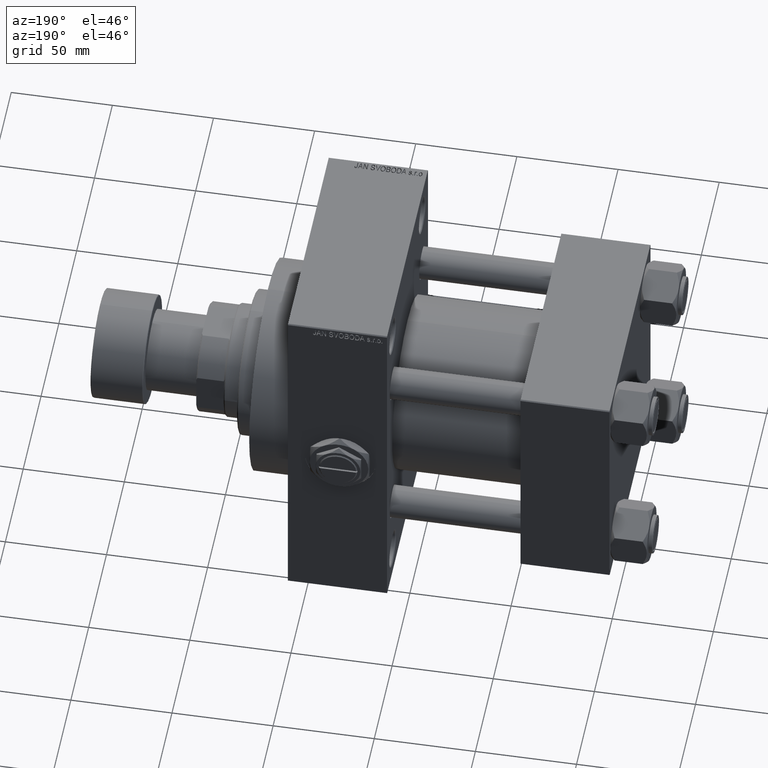
[diagram: clean part render]
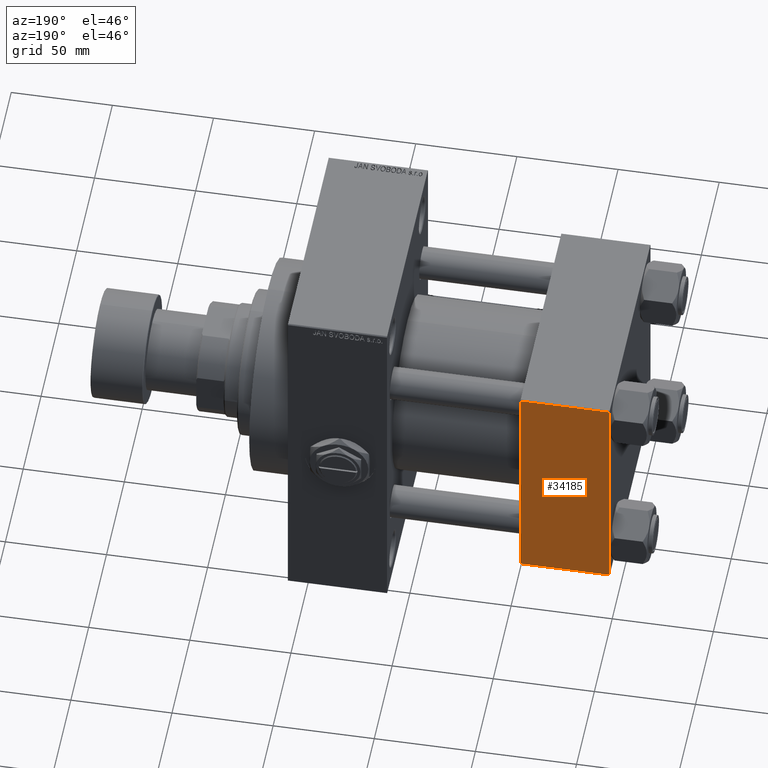
[diagram: same view with one face highlighted and labeled with its STEP entity id]
A machine part, auxiliary view. The second image highlights one B-rep face of the part: STEP entity #34185.
In plain terms, the highlighted planar face has unit normal (0, 1, 0).
Its self-contained STEP definition (entity closure, byte-faithful):
#530 = CARTESIAN_POINT ( 'NONE',  ( 0.000000000000000000, 57.50000000000000000, -56.99999999999997158 ) ) ;
#750 = VECTOR ( 'NONE', #8493, 1000.000000000000000 ) ;
#909 = ORIENTED_EDGE ( 'NONE', *, *, #25220, .T. ) ;
#2194 = VERTEX_POINT ( 'NONE', #530 ) ;
#2809 = EDGE_CURVE ( 'NONE', #9133, #2194, #8449, .T. ) ;
#8449 = LINE ( 'NONE', #34281, #25330 ) ;
#8493 = DIRECTION ( 'NONE',  ( 1.000000000000000000, 0.000000000000000000, 0.000000000000000000 ) ) ;
#9133 = VERTEX_POINT ( 'NONE', #10235 ) ;
#10235 = CARTESIAN_POINT ( 'NONE',  ( 0.000000000000000000, 57.50000000000000000, 57.00000000000004263 ) ) ;
#10766 = EDGE_CURVE ( 'NONE', #9133, #21013, #42846, .T. ) ;
#10956 = DIRECTION ( 'NONE',  ( -1.000000000000000000, 0.000000000000000000, 0.000000000000000000 ) ) ;
#11236 = CARTESIAN_POINT ( 'NONE',  ( 44.00000000000000000, 57.50000000000000000, -56.99999999999997158 ) ) ;
#13986 = VECTOR ( 'NONE', #47131, 1000.000000000000000 ) ;
#14432 = ORIENTED_EDGE ( 'NONE', *, *, #10766, .T. ) ;
#15761 = CARTESIAN_POINT ( 'NONE',  ( 44.00000000000000000, 57.50000000000000000, 57.00000000000004263 ) ) ;
#21013 = VERTEX_POINT ( 'NONE', #28017 ) ;
#22716 = CARTESIAN_POINT ( 'NONE',  ( 44.00000000000000000, 57.50000000000000000, -57.00000000000000000 ) ) ;
#24050 = CARTESIAN_POINT ( 'NONE',  ( 44.00000000000000000, 57.50000000000000000, 57.50000000000001421 ) ) ;
#25220 = EDGE_CURVE ( 'NONE', #21013, #25411, #46122, .T. ) ;
#25330 = VECTOR ( 'NONE', #30514, 1000.000000000000000 ) ;
#25411 = VERTEX_POINT ( 'NONE', #11236 ) ;
#27736 = EDGE_CURVE ( 'NONE', #25411, #2194, #30721, .T. ) ;
#28017 = CARTESIAN_POINT ( 'NONE',  ( 44.00000000000000000, 57.50000000000000000, 57.00000000000004263 ) ) ;
#30514 = DIRECTION ( 'NONE',  ( 0.000000000000000000, 0.000000000000000000, -1.000000000000000000 ) ) ;
#30721 = LINE ( 'NONE', #22716, #35715 ) ;
#31092 = CARTESIAN_POINT ( 'NONE',  ( 44.00000000000000000, 57.50000000000000000, 57.50000000000001421 ) ) ;
#31843 = DIRECTION ( 'NONE',  ( -0.000000000000000000, 1.000000000000000000, 0.000000000000000000 ) ) ;
#34185 = ADVANCED_FACE ( 'NONE', ( #35352 ), #39123, .T. ) ;
#34281 = CARTESIAN_POINT ( 'NONE',  ( 0.000000000000000000, 57.50000000000000000, 57.50000000000001421 ) ) ;
#35352 = FACE_OUTER_BOUND ( 'NONE', #40081, .T. ) ;
#35715 = VECTOR ( 'NONE', #10956, 1000.000000000000000 ) ;
#37355 = ORIENTED_EDGE ( 'NONE', *, *, #27736, .T. ) ;
#39123 = PLANE ( 'NONE',  #47028 ) ;
#40081 = EDGE_LOOP ( 'NONE', ( #909, #37355, #43851, #14432 ) ) ;
#42846 = LINE ( 'NONE', #15761, #750 ) ;
#42889 = DIRECTION ( 'NONE',  ( 0.000000000000000000, -0.000000000000000000, 1.000000000000000000 ) ) ;
#43851 = ORIENTED_EDGE ( 'NONE', *, *, #2809, .F. ) ;
#46122 = LINE ( 'NONE', #24050, #13986 ) ;
#47028 = AXIS2_PLACEMENT_3D ( 'NONE', #31092, #31843, #42889 ) ;
#47131 = DIRECTION ( 'NONE',  ( 0.000000000000000000, 0.000000000000000000, -1.000000000000000000 ) ) ;